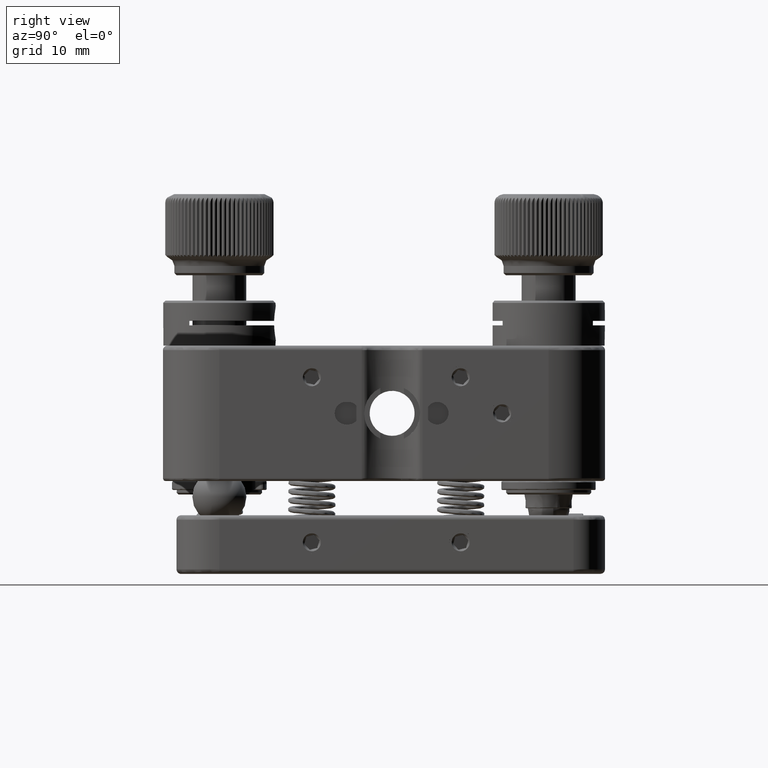
[diagram: clean part render]
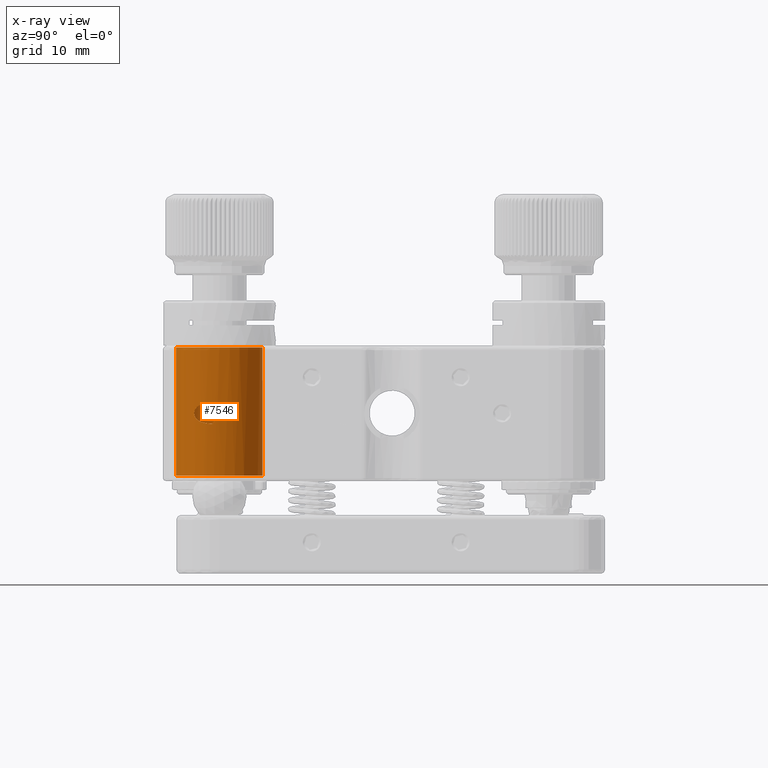
[diagram: x-ray — body ghosted, one internal face saturated and labeled with its STEP entity id]
A machine part, right view, then the same camera in x-ray: the body is ghosted and one INTERNAL B-rep face — a face not visible from any outside direction — is saturated and labeled: STEP entity #7546.
In plain terms, the highlighted cylindrical surface (bore or boss wall) has radius 4.8 mm, axis along (0, 0, 1).
Its self-contained STEP definition (entity closure, byte-faithful):
#1816 = CARTESIAN_POINT ( 'NONE',  ( -13.45606163767351937, -18.49467283012948826, -0.2145136151663367963 ) ) ;
#2234 = DIRECTION ( 'NONE',  ( -1.306104834246989939E-31, -9.035018104045883020E-17, -1.000000000000000000 ) ) ;
#2815 = DIRECTION ( 'NONE',  ( 0.000000000000000000, -1.000000000000000000, 1.807003620809174385E-16 ) ) ;
#3093 = CARTESIAN_POINT ( 'NONE',  ( -13.50895581125782741, -19.00000000026272318, 1.181209187417052942 ) ) ;
#3096 = FACE_OUTER_BOUND ( 'NONE', #46697, .T. ) ;
#3376 = CARTESIAN_POINT ( 'NONE',  ( -13.59764198354966425, -19.45289600701066490, -1.149129782350963636 ) ) ;
#3659 = CARTESIAN_POINT ( 'NONE',  ( -13.72921354950450379, -19.87883440066222818, 1.082635024284653191 ) ) ;
#4897 = CIRCLE ( 'NONE', #39123, 4.799999999999998934 ) ;
#4977 = CIRCLE ( 'NONE', #39200, 4.799999999999998934 ) ;
#5020 = CARTESIAN_POINT ( 'NONE',  ( -13.45467478759061208, -18.46179275173520651, -0.1085444869905027032 ) ) ;
#5108 = DIRECTION ( 'NONE',  ( -1.306104834246989939E-31, -9.035018104045883020E-17, -1.000000000000000000 ) ) ;
#5295 = CARTESIAN_POINT ( 'NONE',  ( -13.49157025552441702, -18.89009908305495244, 0.9936705366131635131 ) ) ;
#5662 = CARTESIAN_POINT ( 'NONE',  ( -13.50895581126021483, -19.00000000027782932, -1.181209187905539082 ) ) ;
#6155 = CARTESIAN_POINT ( 'NONE',  ( -13.49151067340688392, -18.88972244156104097, -0.9930278226786448670 ) ) ;
#6763 = ORIENTED_EDGE ( 'NONE', *, *, #48951, .T. ) ;
#7546 = ADVANCED_FACE ( 'NONE', ( #43361, #16732, #3096 ), #20804, .F. ) ;
#8471 = ORIENTED_EDGE ( 'NONE', *, *, #28495, .T. ) ;
#8856 = CARTESIAN_POINT ( 'NONE',  ( -14.27639003840506859, -20.94313233574505162, -0.4362099342482934627 ) ) ;
#9171 = DIRECTION ( 'NONE',  ( 0.000000000000000000, -1.000000000000000000, 1.807003620809174385E-16 ) ) ;
#10026 = CARTESIAN_POINT ( 'NONE',  ( -23.04999999999999361, -18.25000000000000000, 7.299999999999999822 ) ) ;
#10228 = CARTESIAN_POINT ( 'NONE',  ( -13.46452683011565554, -18.62667132284300209, -0.5142726846767222693 ) ) ;
#10386 = VERTEX_POINT ( 'NONE', #5662 ) ;
#10799 = ORIENTED_EDGE ( 'NONE', *, *, #50961, .F. ) ;
#12081 = CARTESIAN_POINT ( 'NONE',  ( -13.95259997479889869, -20.39108420877533945, -0.9161107244688138085 ) ) ;
#12940 = CARTESIAN_POINT ( 'NONE',  ( -14.27406282077367017, -20.93971567834498870, 0.4424724755088763062 ) ) ;
#13222 = CARTESIAN_POINT ( 'NONE',  ( -14.14694553016270184, -20.74236281830033590, -0.6889952106681040966 ) ) ;
#14300 = CARTESIAN_POINT ( 'NONE',  ( -13.50895581125782741, -19.00000000026272318, 1.181209187417052942 ) ) ;
#16447 = CARTESIAN_POINT ( 'NONE',  ( -14.34963615738843856, -21.04770660940324589, 0.1205368440900188715 ) ) ;
#16732 = FACE_BOUND ( 'NONE', #30703, .T. ) ;
#16941 = EDGE_LOOP ( 'NONE', ( #6763 ) ) ;
#17296 = CARTESIAN_POINT ( 'NONE',  ( -14.09936657824306927, -20.66667894191062160, 0.7725477194657719426 ) ) ;
#17575 = CARTESIAN_POINT ( 'NONE',  ( -14.35035208227364123, -21.04870443148659831, -0.1128686271277010017 ) ) ;
#18360 = CARTESIAN_POINT ( 'NONE',  ( -13.47835013082408118, -18.78085379761752094, 0.8055520506230202660 ) ) ;
#19357 = DIRECTION ( 'NONE',  ( -1.000000000000000000, 7.228014483236697541E-16, 0.000000000000000000 ) ) ;
#19517 = CARTESIAN_POINT ( 'NONE',  ( -13.45611478321322352, -18.49575440913137925, 0.2177270886386429849 ) ) ;
#19898 = VERTEX_POINT ( 'NONE', #10026 ) ;
#20804 = CYLINDRICAL_SURFACE ( 'NONE', #54939, 4.799999999999998934 ) ;
#21929 = CARTESIAN_POINT ( 'NONE',  ( -13.54491503711117595, -19.22731236925554299, 1.168759458749102365 ) ) ;
#23260 = ORIENTED_EDGE ( 'NONE', *, *, #26352, .T. ) ;
#25432 = CARTESIAN_POINT ( 'NONE',  ( -13.73172304450448777, -19.88602178174684454, -1.081236697268083580 ) ) ;
#25895 = B_SPLINE_CURVE_WITH_KNOTS ( 'NONE', 3,
 ( #36893, #6155, #27343, #10228, #49913, #1816, #5020, #45566, #19517, #44993, #50202, #18360, #5295, #14300 ),
 .UNSPECIFIED., .F., .F.,
 ( 4, 2, 2, 2, 2, 2, 4 ),
 ( 5.513272304499021325E-13, 0.0006562265819489747831, 0.0009843398726478008991, 0.001312453163346627124, 0.001640566454045453348, 0.001968679744744279356, 0.002624906326141932238 ),
 .UNSPECIFIED. ) ;
#26352 = EDGE_CURVE ( 'NONE', #10386, #45708, #25895, .T. ) ;
#27343 = CARTESIAN_POINT ( 'NONE',  ( -13.47825102511165341, -18.78004782915592230, -0.8042137668447753018 ) ) ;
#27713 = CARTESIAN_POINT ( 'NONE',  ( -18.24999999999999645, -23.05000000000000071, -6.899999999999998579 ) ) ;
#28495 = EDGE_CURVE ( 'NONE', #45708, #10386, #41558, .T. ) ;
#29752 = CARTESIAN_POINT ( 'NONE',  ( -13.81341633112046807, -20.09506899916842571, -1.033576046812610283 ) ) ;
#30703 = EDGE_LOOP ( 'NONE', ( #8471, #23260 ) ) ;
#30897 = CARTESIAN_POINT ( 'NONE',  ( -14.23338023043924316, -20.87940855598623813, 0.5349907825278359397 ) ) ;
#33257 = CARTESIAN_POINT ( 'NONE',  ( -18.24999999999999645, -18.25000000000000355, -6.899999999999999467 ) ) ;
#34103 = CARTESIAN_POINT ( 'NONE',  ( -14.09760448450019332, -20.65990198129838262, -0.7568505844070132493 ) ) ;
#35238 = CARTESIAN_POINT ( 'NONE',  ( -14.33378978576817886, -21.02593866334767370, -0.2278933823736233322 ) ) ;
#36724 = CARTESIAN_POINT ( 'NONE',  ( -18.24999999999999645, -18.25000000000000355, 7.299999999999999822 ) ) ;
#36893 = CARTESIAN_POINT ( 'NONE',  ( -13.50895581126021483, -19.00000000027782932, -1.181209187905539082 ) ) ;
#38726 = CARTESIAN_POINT ( 'NONE',  ( -13.54498613816985042, -19.22776182955132640, -1.168734841865807894 ) ) ;
#39123 = AXIS2_PLACEMENT_3D ( 'NONE', #45081, #5108, #9171 ) ;
#39200 = AXIS2_PLACEMENT_3D ( 'NONE', #36724, #2234, #19357 ) ;
#41558 = B_SPLINE_CURVE_WITH_KNOTS ( 'NONE', 3,
 ( #3093, #21929, #56130, #3659, #57268, #56991, #17296, #30897, #12940, #48550, #16447, #17575, #35238, #8856, #52907, #13222, #34103, #51785, #12081, #29752, #25432, #3376, #38726, #56418 ),
 .UNSPECIFIED., .F., .F.,
 ( 4, 2, 2, 2, 2, 2, 2, 2, 2, 2, 2, 4 ),
 ( 3.508919253475750383E-14, 0.0006822692277875923869, 0.001364538455540095438, 0.002046807683292598597, 0.002387942297168849960, 0.002729076911045101757, 0.003070211524921353120, 0.003411346138797604916, 0.003752480752673856279, 0.004093615366550108076, 0.004775884594302602128, 0.005458153822055097047 ),
 .UNSPECIFIED. ) ;
#42518 = DIRECTION ( 'NONE',  ( 1.306104834246989939E-31, 9.035018104045883020E-17, 1.000000000000000000 ) ) ;
#43361 = FACE_OUTER_BOUND ( 'NONE', #16941, .T. ) ;
#44993 = CARTESIAN_POINT ( 'NONE',  ( -13.46109453308682724, -18.57880865302408324, 0.4201242050415604501 ) ) ;
#45081 = CARTESIAN_POINT ( 'NONE',  ( -18.24999999999999645, -18.25000000000000355, -6.899999999999999467 ) ) ;
#45566 = CARTESIAN_POINT ( 'NONE',  ( -13.45469686728338843, -18.46229208137588884, 0.1111564297183980782 ) ) ;
#45708 = VERTEX_POINT ( 'NONE', #50916 ) ;
#46697 = EDGE_LOOP ( 'NONE', ( #10799 ) ) ;
#48550 = CARTESIAN_POINT ( 'NONE',  ( -14.33262801516504048, -21.02431858587280544, 0.2341656997433279042 ) ) ;
#48951 = EDGE_CURVE ( 'NONE', #50880, #50880, #4897, .T. ) ;
#49913 = CARTESIAN_POINT ( 'NONE',  ( -13.46098829599713120, -18.57722578521967449, -0.4168263582635462483 ) ) ;
#50202 = CARTESIAN_POINT ( 'NONE',  ( -13.46464523970317018, -18.62814266516403805, 0.5171450482660400194 ) ) ;
#50880 = VERTEX_POINT ( 'NONE', #27713 ) ;
#50916 = CARTESIAN_POINT ( 'NONE',  ( -13.50895581125782741, -19.00000000026272318, 1.181209187417052942 ) ) ;
#50961 = EDGE_CURVE ( 'NONE', #19898, #19898, #4977, .T. ) ;
#51785 = CARTESIAN_POINT ( 'NONE',  ( -14.00076362369217975, -20.48472734240022319, -0.8698634426420390753 ) ) ;
#52907 = CARTESIAN_POINT ( 'NONE',  ( -14.23582682600746629, -20.88312402474636897, -0.5298176712540357824 ) ) ;
#54939 = AXIS2_PLACEMENT_3D ( 'NONE', #33257, #42518, #2815 ) ;
#56130 = CARTESIAN_POINT ( 'NONE',  ( -13.59668310198131103, -19.44885507146531012, 1.149484311721611807 ) ) ;
#56418 = CARTESIAN_POINT ( 'NONE',  ( -13.50895581126021483, -19.00000000027782932, -1.181209187905539082 ) ) ;
#56991 = CARTESIAN_POINT ( 'NONE',  ( -13.99585071417269155, -20.48375212187370664, 0.8800575732262909678 ) ) ;
#57268 = CARTESIAN_POINT ( 'NONE',  ( -13.81103965707672465, -20.08931121946090670, 1.035119529494483492 ) ) ;